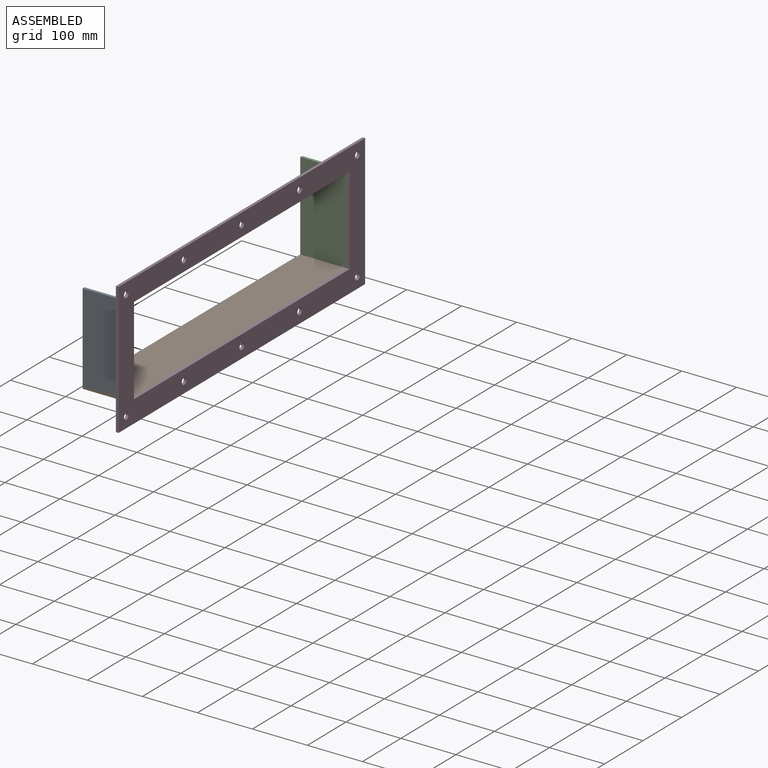
[diagram: assembled view]
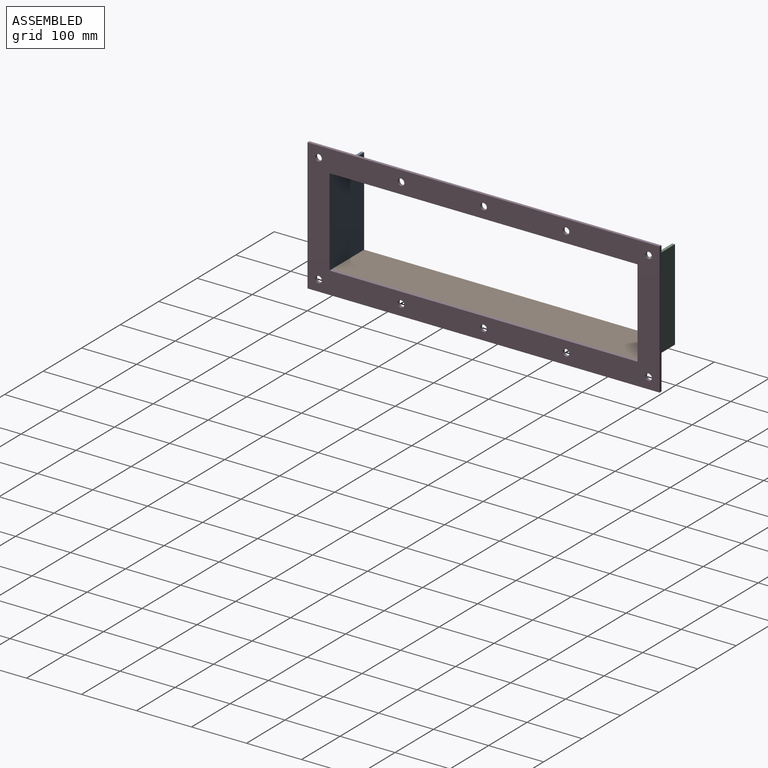
[diagram: assembled view, second angle]
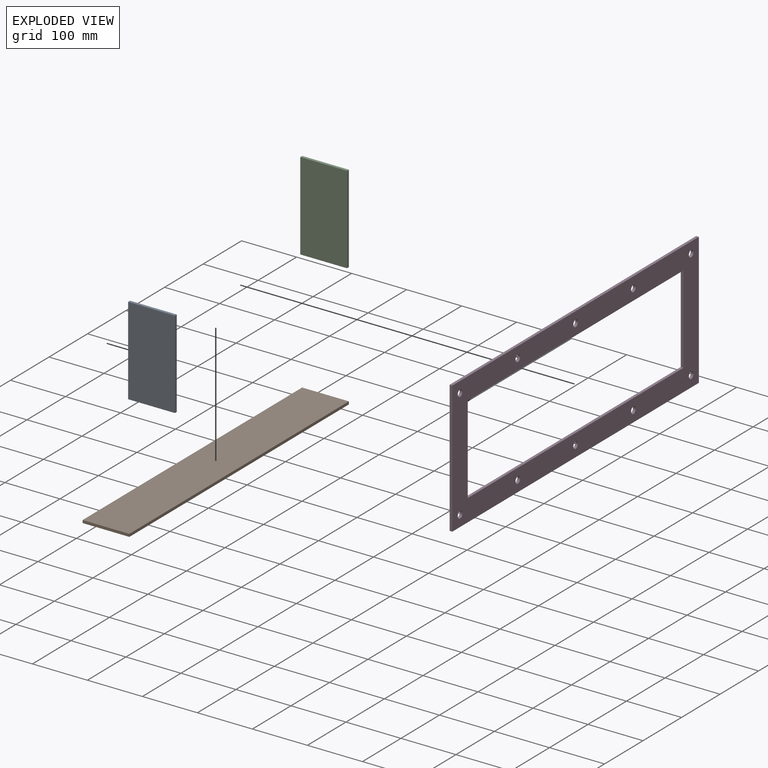
[diagram: exploded view]
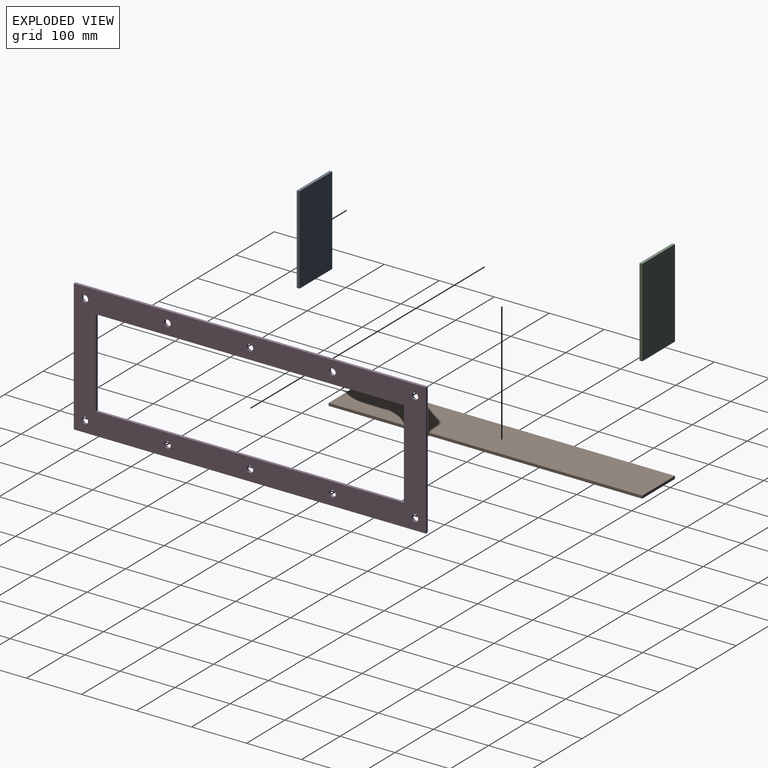
[diagram: exploded view, second angle]
ASSEMBLY  parts=4 mates=3
PART A: 6 faces, bbox 85x5x160 mm
  f0: plane 160x5mm, normal (1,0,0), area 800mm2, adj f1,f3,f4,f5
  f1: plane 85x5mm, normal (0,0,1), area 425mm2, adj f0,f2,f4,f5
  f2: plane 160x5mm, normal (-1,0,0), area 800mm2, adj f1,f3,f4,f5
  f3: plane 85x5mm, normal (0,0,-1), area 425mm2, adj f0,f2,f4,f5
  f4: plane 160x85mm, normal (0,-1,0), area 13600mm2, adj f0,f1,f2,f3
  f5: plane 160x85mm, normal (0,1,0), area 13600mm2, adj f0,f1,f2,f3
PART B: 6 faces, bbox 570x85x5 mm
  f0: plane 85x5mm, normal (1,0,0), area 425mm2, adj f1,f3,f4,f5
  f1: plane 570x5mm, normal (0,1,0), area 2850mm2, adj f0,f2,f4,f5
  f2: plane 85x5mm, normal (-1,0,0), area 425mm2, adj f1,f3,f4,f5
  f3: plane 570x5mm, normal (0,-1,0), area 2850mm2, adj f0,f2,f4,f5
  f4: plane 570x85mm, normal (0,0,1), area 48450mm2, adj f0,f1,f2,f3
  f5: plane 570x85mm, normal (0,0,-1), area 48450mm2, adj f0,f1,f2,f3
PART C: same geometry as A
PART D: 20 faces, bbox 640x5x240 mm
  f0: plane 160x5mm, normal (-1,0,0), area 800mm2, adj f1,f15,f18,f19
  f1: plane 560x5mm, normal (0,0,1), area 2800mm2, adj f0,f2,f18,f19
  f2: plane 160x5mm, normal (1,0,0), area 800mm2, adj f1,f15,f18,f19
  f3: plane 240x5mm, normal (-1,0,0), area 1200mm2, adj f4,f16,f18,f19
  f4: plane 640x5mm, normal (0,0,-1), area 3200mm2, adj f3,f5,f18,f19
  f5: plane 240x5mm, normal (1,0,0), area 1200mm2, adj f4,f16,f18,f19
  f6: cylinder r=6mm len=12mm, axis (0,1,0), area 188.5mm2, adj f18,f19
  f7: cylinder r=6mm len=12mm, axis (0,1,0), area 188.5mm2, adj f18,f19
  f8: cylinder r=6mm len=12mm, axis (0,1,0), area 188.5mm2, adj f18,f19
  f9: cylinder r=6mm len=12mm, axis (0,1,0), area 188.5mm2, adj f18,f19
  f10: cylinder r=6mm len=12mm, axis (0,1,0), area 188.5mm2, adj f18,f19
  f11: cylinder r=6mm len=12mm, axis (0,1,0), area 188.5mm2, adj f18,f19
  f12: cylinder r=6mm len=12mm, axis (0,1,0), area 188.5mm2, adj f18,f19
  f13: cylinder r=6mm len=12mm, axis (0,1,0), area 188.5mm2, adj f18,f19
  f14: cylinder r=6mm len=12mm, axis (0,1,0), area 188.5mm2, adj f18,f19
  f15: plane 560x5mm, normal (0,0,-1), area 2800mm2, adj f0,f2,f18,f19
  f16: plane 640x5mm, normal (0,0,1), area 3200mm2, adj f3,f5,f18,f19
  f17: cylinder r=6mm len=12mm, axis (0,1,0), area 188.5mm2, adj f18,f19
  f18: plane 640x240mm, normal (0,-1,0), area 62869mm2, adj f0,f1,f2,f3,f4,f5,f6,f7
  f19: plane 640x240mm, normal (0,1,0), area 62869mm2, adj f0,f1,f2,f3,f4,f5,f6,f7
PLACE A t=(2131.88,-463.77,-270.57)mm
PLACE B rot(axis=(0,0,1),90deg) t=(2131.88,-183.77,-355.57)mm
PLACE C t=(2131.88,101.23,-270.57)mm
PLACE D rot(axis=(0,0,1),90deg) t=(2174.38,-483.77,-370.57)mm
MATE fastened B.f4 <-> C.f3  axis (0,0,1) through (2174.38,101.23,-350.57)mm
MATE fastened A.f0 <-> D.f19  axis (1,0,0) through (2174.38,-463.77,-190.57)mm
MATE fastened C.f0 <-> D.f19  axis (1,0,0) through (2174.38,96.23,-190.57)mm
